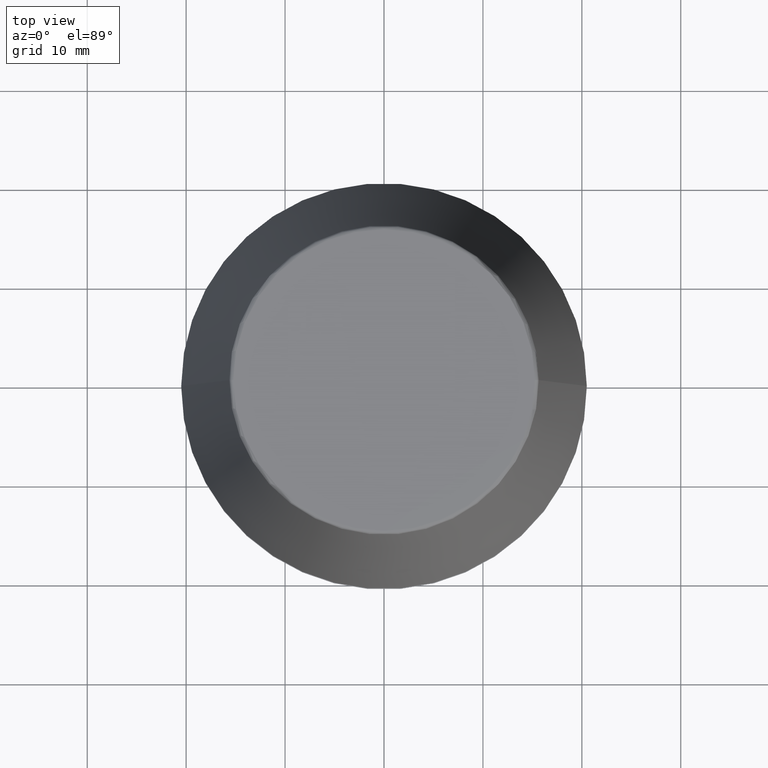
[diagram: clean part render]
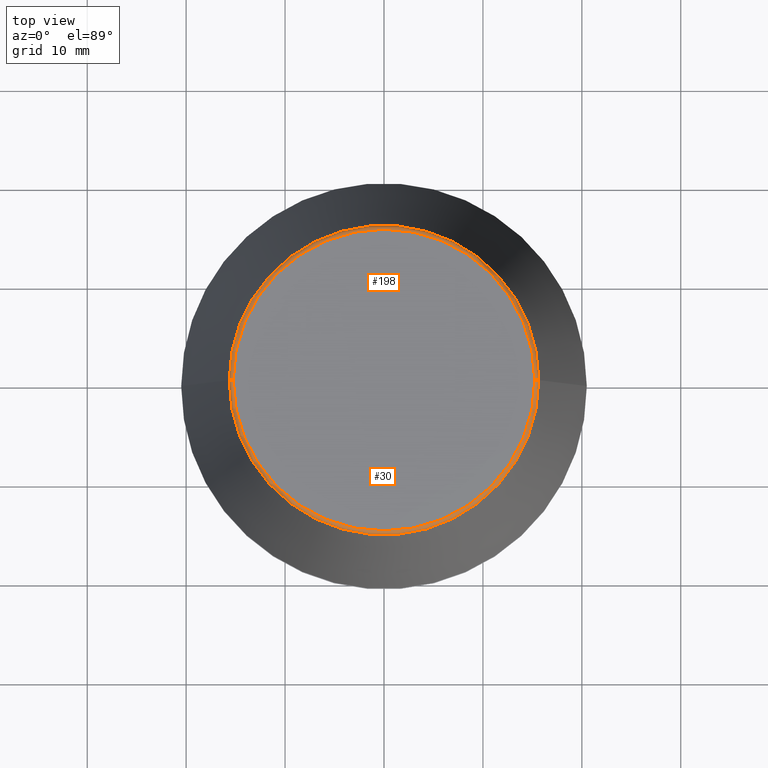
[diagram: same view with one multi-face feature highlighted, each face labeled with its STEP entity id]
A machine part, top view. The highlighted faces form ONE feature: a constant-radius fillet chain: 2 tangent blend faces with common blend radius 0.4 mm. The faces share edges in the B-rep.
Their STEP definitions:
[1] entity #198 (Torus):
#7 = FACE_OUTER_BOUND ( 'NONE', #174, .T. ) ;
#13 = DIRECTION ( 'NONE',  ( 1.000000000000000000, 0.0000000000000000000, 0.0000000000000000000 ) ) ;
#33 = TOROIDAL_SURFACE ( 'NONE', #181, 15.24773554530077600, 0.3999999999999991900 ) ;
#42 = DIRECTION ( 'NONE',  ( 1.224646799147353200E-016, 1.000000000000000000, 0.0000000000000000000 ) ) ;
#47 = ORIENTED_EDGE ( 'NONE', *, *, #377, .T. ) ;
#52 = AXIS2_PLACEMENT_3D ( 'NONE', #182, #214, #13 ) ;
#55 = DIRECTION ( 'NONE',  ( 1.000000000000000000, 0.0000000000000000000, 0.0000000000000000000 ) ) ;
#56 = VERTEX_POINT ( 'NONE', #333 ) ;
#104 = CARTESIAN_POINT ( 'NONE',  ( -15.64384277279740400, 0.0000000000000000000, 45.65566924038402900 ) ) ;
#124 = DIRECTION ( 'NONE',  ( 0.0000000000000000000, 0.0000000000000000000, -1.000000000000000000 ) ) ;
#130 = DIRECTION ( 'NONE',  ( -0.0000000000000000000, -0.0000000000000000000, 1.000000000000000000 ) ) ;
#137 = ORIENTED_EDGE ( 'NONE', *, *, #253, .F. ) ;
#139 = DIRECTION ( 'NONE',  ( -0.0000000000000000000, -0.0000000000000000000, 1.000000000000000000 ) ) ;
#146 = CARTESIAN_POINT ( 'NONE',  ( 0.0000000000000000000, 0.0000000000000000000, 46.00000000000000000 ) ) ;
#148 = CARTESIAN_POINT ( 'NONE',  ( 15.24773554530077600, 0.0000000000000000000, 46.00000000000000000 ) ) ;
#160 = VERTEX_POINT ( 'NONE', #104 ) ;
#174 = EDGE_LOOP ( 'NONE', ( #204, #47, #137, #242 ) ) ;
#181 = AXIS2_PLACEMENT_3D ( 'NONE', #354, #139, #55 ) ;
#182 = CARTESIAN_POINT ( 'NONE',  ( 0.0000000000000000000, 0.0000000000000000000, 45.65566924038402900 ) ) ;
#183 = AXIS2_PLACEMENT_3D ( 'NONE', #371, #279, #124 ) ;
#184 = CARTESIAN_POINT ( 'NONE',  ( 15.64384277279740400, 2.213191991290356800E-015, 45.65566924038402900 ) ) ;
#198 = ADVANCED_FACE ( 'NONE', ( #7 ), #33, .T. ) ;
#204 = ORIENTED_EDGE ( 'NONE', *, *, #369, .T. ) ;
#205 = CIRCLE ( 'NONE', #384, 0.3999999999999975800 ) ;
#214 = DIRECTION ( 'NONE',  ( -0.0000000000000000000, -0.0000000000000000000, 1.000000000000000000 ) ) ;
#217 = CARTESIAN_POINT ( 'NONE',  ( -15.24773554530077600, 1.867309052979791600E-015, 45.60000000000000100 ) ) ;
#237 = AXIS2_PLACEMENT_3D ( 'NONE', #146, #130, #280 ) ;
#242 = ORIENTED_EDGE ( 'NONE', *, *, #293, .F. ) ;
#245 = CIRCLE ( 'NONE', #237, 15.24773554530077600 ) ;
#246 = CIRCLE ( 'NONE', #183, 0.3999999999999975800 ) ;
#253 = EDGE_CURVE ( 'NONE', #255, #56, #245, .T. ) ;
#255 = VERTEX_POINT ( 'NONE', #148 ) ;
#269 = VERTEX_POINT ( 'NONE', #184 ) ;
#279 = DIRECTION ( 'NONE',  ( 0.0000000000000000000, -1.000000000000000000, 0.0000000000000000000 ) ) ;
#280 = DIRECTION ( 'NONE',  ( 1.000000000000000000, 0.0000000000000000000, 0.0000000000000000000 ) ) ;
#293 = EDGE_CURVE ( 'NONE', #269, #255, #246, .T. ) ;
#298 = CIRCLE ( 'NONE', #52, 15.64384277279740400 ) ;
#323 = DIRECTION ( 'NONE',  ( -1.000000000000000000, 1.224646799147353900E-016, 0.0000000000000000000 ) ) ;
#333 = CARTESIAN_POINT ( 'NONE',  ( -15.24773554530077600, 1.891563625393435400E-015, 46.00000000000000000 ) ) ;
#354 = CARTESIAN_POINT ( 'NONE',  ( 0.0000000000000000000, 0.0000000000000000000, 45.60000000000000100 ) ) ;
#369 = EDGE_CURVE ( 'NONE', #269, #160, #298, .T. ) ;
#371 = CARTESIAN_POINT ( 'NONE',  ( 15.24773554530077600, 0.0000000000000000000, 45.60000000000000100 ) ) ;
#377 = EDGE_CURVE ( 'NONE', #160, #56, #205, .T. ) ;
#384 = AXIS2_PLACEMENT_3D ( 'NONE', #217, #42, #323 ) ;
[2] entity #30 (Torus):
#6 = ORIENTED_EDGE ( 'NONE', *, *, #377, .F. ) ;
#10 = DIRECTION ( 'NONE',  ( -0.0000000000000000000, -0.0000000000000000000, 1.000000000000000000 ) ) ;
#16 = CIRCLE ( 'NONE', #120, 15.64384277279740400 ) ;
#27 = DIRECTION ( 'NONE',  ( 1.000000000000000000, 0.0000000000000000000, 0.0000000000000000000 ) ) ;
#28 = DIRECTION ( 'NONE',  ( 1.000000000000000000, 0.0000000000000000000, 0.0000000000000000000 ) ) ;
#30 = ADVANCED_FACE ( 'NONE', ( #347 ), #113, .T. ) ;
#42 = DIRECTION ( 'NONE',  ( 1.224646799147353200E-016, 1.000000000000000000, 0.0000000000000000000 ) ) ;
#54 = EDGE_LOOP ( 'NONE', ( #6, #320, #179, #102 ) ) ;
#56 = VERTEX_POINT ( 'NONE', #333 ) ;
#96 = AXIS2_PLACEMENT_3D ( 'NONE', #359, #230, #27 ) ;
#98 = EDGE_CURVE ( 'NONE', #160, #269, #16, .T. ) ;
#102 = ORIENTED_EDGE ( 'NONE', *, *, #135, .F. ) ;
#104 = CARTESIAN_POINT ( 'NONE',  ( -15.64384277279740400, 0.0000000000000000000, 45.65566924038402900 ) ) ;
#105 = DIRECTION ( 'NONE',  ( 1.000000000000000000, 0.0000000000000000000, 0.0000000000000000000 ) ) ;
#111 = AXIS2_PLACEMENT_3D ( 'NONE', #169, #10, #28 ) ;
#113 = TOROIDAL_SURFACE ( 'NONE', #111, 15.24773554530077600, 0.3999999999999991900 ) ;
#120 = AXIS2_PLACEMENT_3D ( 'NONE', #330, #382, #105 ) ;
#124 = DIRECTION ( 'NONE',  ( 0.0000000000000000000, 0.0000000000000000000, -1.000000000000000000 ) ) ;
#135 = EDGE_CURVE ( 'NONE', #56, #255, #341, .T. ) ;
#148 = CARTESIAN_POINT ( 'NONE',  ( 15.24773554530077600, 0.0000000000000000000, 46.00000000000000000 ) ) ;
#160 = VERTEX_POINT ( 'NONE', #104 ) ;
#169 = CARTESIAN_POINT ( 'NONE',  ( 0.0000000000000000000, 0.0000000000000000000, 45.60000000000000100 ) ) ;
#179 = ORIENTED_EDGE ( 'NONE', *, *, #293, .T. ) ;
#183 = AXIS2_PLACEMENT_3D ( 'NONE', #371, #279, #124 ) ;
#184 = CARTESIAN_POINT ( 'NONE',  ( 15.64384277279740400, 2.213191991290356800E-015, 45.65566924038402900 ) ) ;
#205 = CIRCLE ( 'NONE', #384, 0.3999999999999975800 ) ;
#217 = CARTESIAN_POINT ( 'NONE',  ( -15.24773554530077600, 1.867309052979791600E-015, 45.60000000000000100 ) ) ;
#230 = DIRECTION ( 'NONE',  ( -0.0000000000000000000, -0.0000000000000000000, 1.000000000000000000 ) ) ;
#246 = CIRCLE ( 'NONE', #183, 0.3999999999999975800 ) ;
#255 = VERTEX_POINT ( 'NONE', #148 ) ;
#269 = VERTEX_POINT ( 'NONE', #184 ) ;
#279 = DIRECTION ( 'NONE',  ( 0.0000000000000000000, -1.000000000000000000, 0.0000000000000000000 ) ) ;
#293 = EDGE_CURVE ( 'NONE', #269, #255, #246, .T. ) ;
#320 = ORIENTED_EDGE ( 'NONE', *, *, #98, .T. ) ;
#323 = DIRECTION ( 'NONE',  ( -1.000000000000000000, 1.224646799147353900E-016, 0.0000000000000000000 ) ) ;
#330 = CARTESIAN_POINT ( 'NONE',  ( 0.0000000000000000000, 0.0000000000000000000, 45.65566924038402900 ) ) ;
#333 = CARTESIAN_POINT ( 'NONE',  ( -15.24773554530077600, 1.891563625393435400E-015, 46.00000000000000000 ) ) ;
#341 = CIRCLE ( 'NONE', #96, 15.24773554530077600 ) ;
#347 = FACE_OUTER_BOUND ( 'NONE', #54, .T. ) ;
#359 = CARTESIAN_POINT ( 'NONE',  ( 0.0000000000000000000, 0.0000000000000000000, 46.00000000000000000 ) ) ;
#371 = CARTESIAN_POINT ( 'NONE',  ( 15.24773554530077600, 0.0000000000000000000, 45.60000000000000100 ) ) ;
#377 = EDGE_CURVE ( 'NONE', #160, #56, #205, .T. ) ;
#382 = DIRECTION ( 'NONE',  ( -0.0000000000000000000, -0.0000000000000000000, 1.000000000000000000 ) ) ;
#384 = AXIS2_PLACEMENT_3D ( 'NONE', #217, #42, #323 ) ;